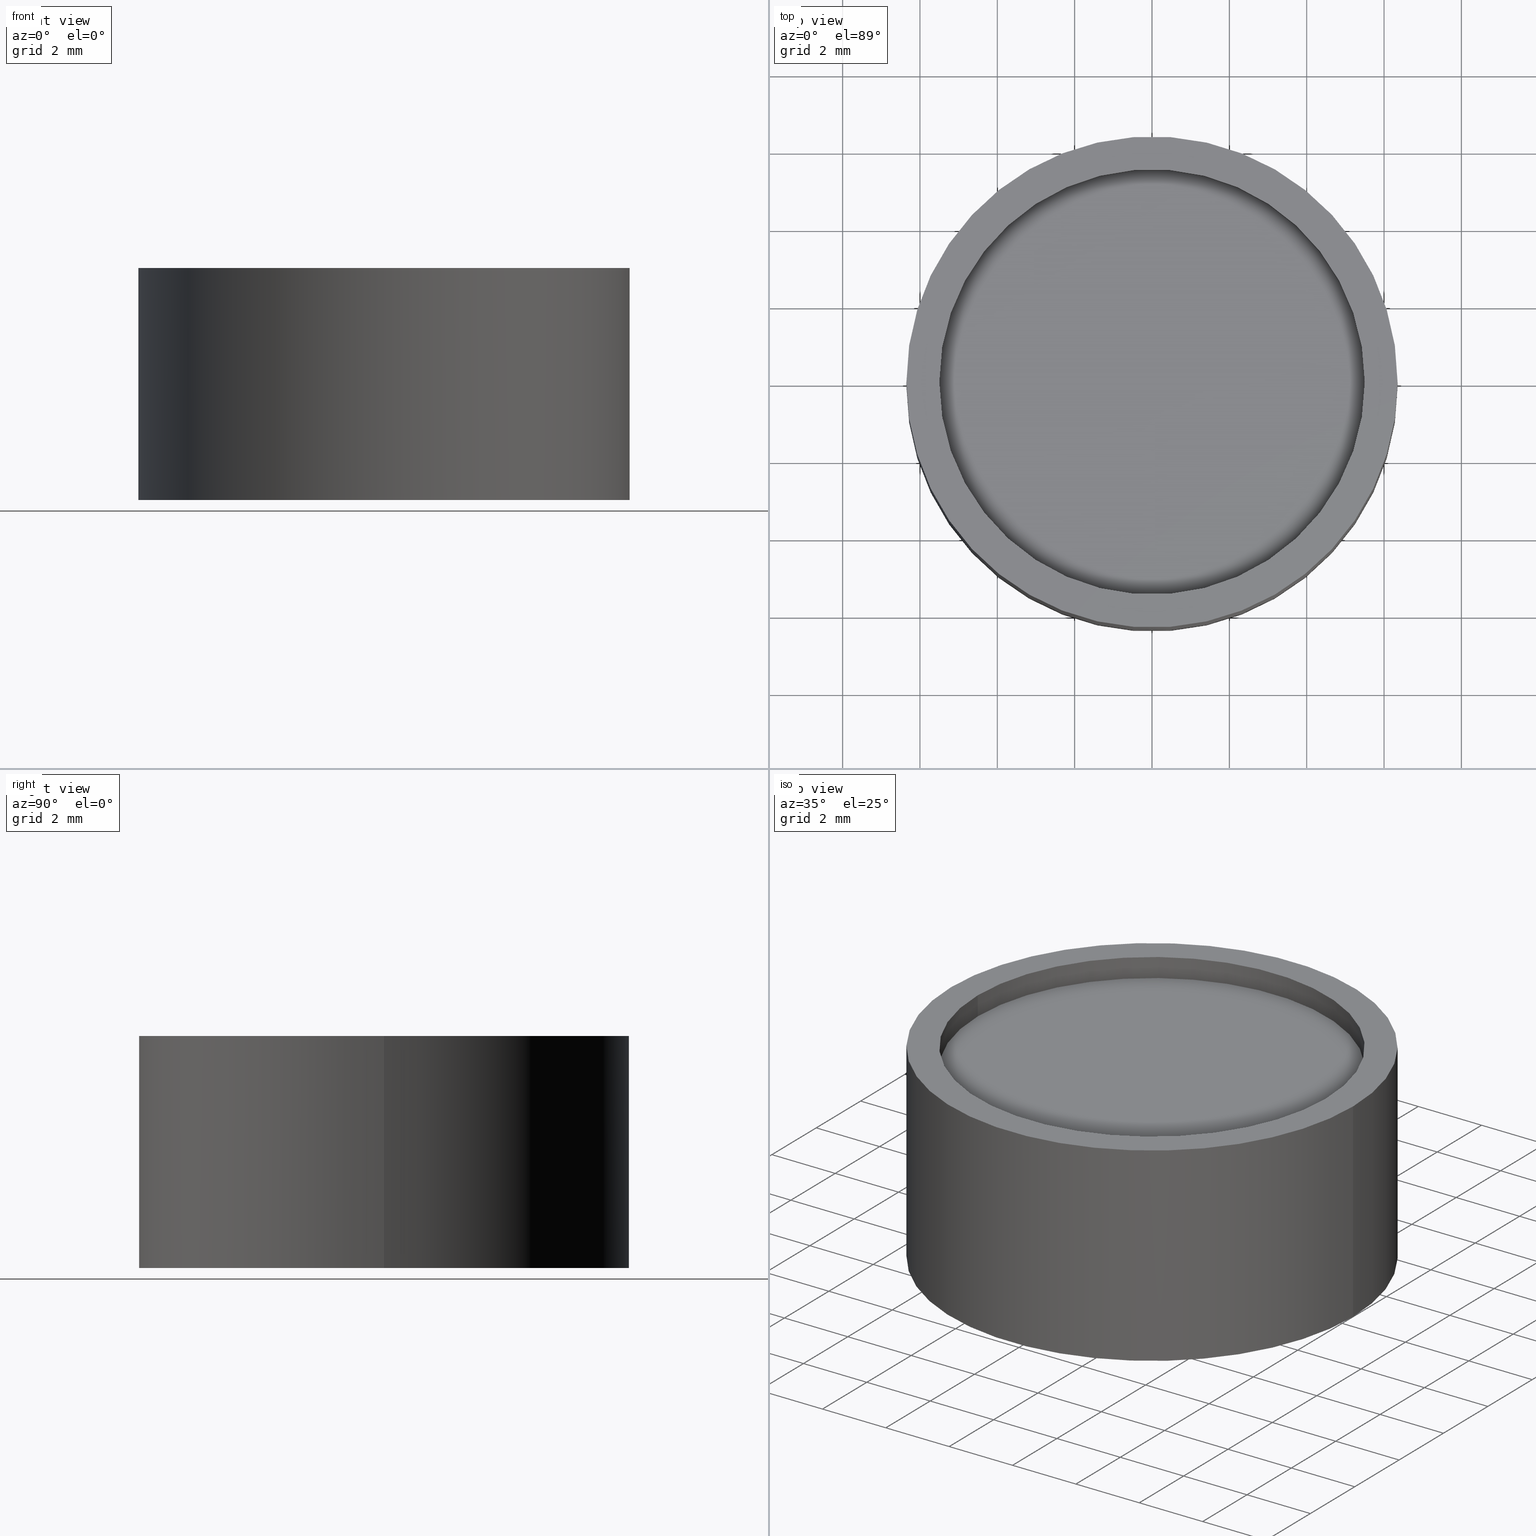
[diagram: canonical four-view strip — front | top / right | iso, engineering-drawing reading convention]
A machine part, canonical four-view strip (front | top / right | iso — engineering-drawing reading convention). The complete STEP part file that produces these views, byte-faithful:
ISO-10303-21;
HEADER;
FILE_DESCRIPTION (( 'STEP AP214' ),
    '1' );
FILE_NAME ('GNIF-030-470-D12.STEP',
    '2024-08-16T08:43:40',
    ( 'Windows User' ),
    ( 'P R C' ),
    'SwSTEP 2.0',
    'SolidWorks 2022',
    '' );
FILE_SCHEMA (( 'AUTOMOTIVE_DESIGN' ));
ENDSEC;

DATA;
#1 = ORIENTED_EDGE ( 'NONE', *, *, #38, .F. ) ;
#2 =( LENGTH_UNIT ( ) NAMED_UNIT ( * ) SI_UNIT ( .MILLI., .METRE. ) );
#3 = DIRECTION ( 'NONE',  ( -0.000000000000000000, -0.000000000000000000, 1.000000000000000000 ) ) ;
#4 = ORIENTED_EDGE ( 'NONE', *, *, #215, .T. ) ;
#5 = STYLED_ITEM ( 'NONE', ( #109 ), #318 ) ;
#6 = FILL_AREA_STYLE ('',( #202 ) ) ;
#7 = CARTESIAN_POINT ( 'NONE',  ( 5.500000000000000000, 6.735557395310442023E-16, 0.5999999999999999778 ) ) ;
#8 = CARTESIAN_POINT ( 'NONE',  ( 5.500000000000000000, 0.000000000000000000, 5.400000000000000355 ) ) ;
#9 = FACE_OUTER_BOUND ( 'NONE', #345, .T. ) ;
#10 = PRESENTATION_STYLE_ASSIGNMENT (( #132 ) ) ;
#11 = AXIS2_PLACEMENT_3D ( 'NONE', #251, #446, #330 ) ;
#12 = AXIS2_PLACEMENT_3D ( 'NONE', #462, #341, #235 ) ;
#13 = EDGE_CURVE ( 'NONE', #29, #464, #210, .T. ) ;
#14 = DIRECTION ( 'NONE',  ( -1.000000000000000000, 0.000000000000000000, 0.000000000000000000 ) ) ;
#15 = CARTESIAN_POINT ( 'NONE',  ( 0.000000000000000000, 0.000000000000000000, 6.000000000000000000 ) ) ;
#16 =( NAMED_UNIT ( * ) PLANE_ANGLE_UNIT ( ) SI_UNIT ( $, .RADIAN. ) );
#17 = CARTESIAN_POINT ( 'NONE',  ( 0.000000000000000000, 0.000000000000000000, 0.000000000000000000 ) ) ;
#18 = PRESENTATION_STYLE_ASSIGNMENT (( #211 ) ) ;
#19 =( NAMED_UNIT ( * ) SI_UNIT ( $, .STERADIAN. ) SOLID_ANGLE_UNIT ( ) );
#20 = CONICAL_SURFACE ( 'NONE', #497, 5.500000000000000000, 0.7853981633974482790 ) ;
#21 = EDGE_CURVE ( 'NONE', #464, #34, #184, .T. ) ;
#22 = FACE_OUTER_BOUND ( 'NONE', #155, .T. ) ;
#23 = CARTESIAN_POINT ( 'NONE',  ( 0.000000000000000000, 0.000000000000000000, 0.5999999999999999778 ) ) ;
#24 = DIRECTION ( 'NONE',  ( 1.000000000000000000, 0.000000000000000000, 0.000000000000000000 ) ) ;
#25 = ORIENTED_EDGE ( 'NONE', *, *, #74, .T. ) ;
#26 = PRESENTATION_LAYER_ASSIGNMENT (  '', '', ( #206 ) ) ;
#27 = CARTESIAN_POINT ( 'NONE',  ( -5.500000000000000000, 0.000000000000000000, 0.4999999999999987232 ) ) ;
#28 = CIRCLE ( 'NONE', #447, 5.500000000000000000 ) ;
#29 = VERTEX_POINT ( 'NONE', #8 ) ;
#30 = EDGE_LOOP ( 'NONE', ( #106, #158, #149, #121 ) ) ;
#31 = SURFACE_SIDE_STYLE ('',( #295 ) ) ;
#32 = ADVANCED_FACE ( 'NONE', ( #300 ), #455, .T. ) ;
#33 = STYLED_ITEM ( 'NONE', ( #10 ), #192 ) ;
#34 = VERTEX_POINT ( 'NONE', #288 ) ;
#35 = STYLED_ITEM ( 'NONE', ( #403 ), #386 ) ;
#36 = FILL_AREA_STYLE ('',( #98 ) ) ;
#37 = SURFACE_STYLE_FILL_AREA ( #429 ) ;
#38 = EDGE_CURVE ( 'NONE', #456, #493, #28, .T. ) ;
#39 = AXIS2_PLACEMENT_3D ( 'NONE', #91, #92, #243 ) ;
#40 = CARTESIAN_POINT ( 'NONE',  ( -6.349999999999999645, 0.000000000000000000, 6.000000000000000000 ) ) ;
#41 = ORIENTED_EDGE ( 'NONE', *, *, #89, .F. ) ;
#42 = PRESENTATION_STYLE_ASSIGNMENT (( #45 ) ) ;
#43 = ORIENTED_EDGE ( 'NONE', *, *, #13, .T. ) ;
#44 = APPLICATION_PROTOCOL_DEFINITION ( 'draft international standard', 'automotive_design', 1998, #116 ) ;
#45 = SURFACE_STYLE_USAGE ( .BOTH. , #382 ) ;
#46 = CARTESIAN_POINT ( 'NONE',  ( 0.000000000000000000, 0.000000000000000000, 6.000000000000000000 ) ) ;
#47 = CARTESIAN_POINT ( 'NONE',  ( 6.349999999999999645, 7.776507174585692163E-16, 6.000000000000000000 ) ) ;
#48 = CARTESIAN_POINT ( 'NONE',  ( 0.000000000000000000, 0.000000000000000000, 0.4999999999999987232 ) ) ;
#49 = EDGE_CURVE ( 'NONE', #113, #272, #52, .T. ) ;
#50 = UNCERTAINTY_MEASURE_WITH_UNIT (LENGTH_MEASURE( 1.000000000000000082E-05 ), #425, 'distance_accuracy_value', 'NONE');
#51 = DIRECTION ( 'NONE',  ( 0.000000000000000000, 0.000000000000000000, -1.000000000000000000 ) ) ;
#52 = LINE ( 'NONE', #321, #421 ) ;
#53 = VECTOR ( 'NONE', #124, 1000.000000000000000 ) ;
#54 = SURFACE_STYLE_FILL_AREA ( #397 ) ;
#55 =( LENGTH_UNIT ( ) NAMED_UNIT ( * ) SI_UNIT ( .MILLI., .METRE. ) );
#56 = SURFACE_STYLE_FILL_AREA ( #278 ) ;
#57 =( NAMED_UNIT ( * ) PLANE_ANGLE_UNIT ( ) SI_UNIT ( $, .RADIAN. ) );
#58 = CARTESIAN_POINT ( 'NONE',  ( 5.500000000000000000, 6.735557395310442023E-16, 0.5999999999999999778 ) ) ;
#59 = PRESENTATION_STYLE_ASSIGNMENT (( #219 ) ) ;
#60 = AXIS2_PLACEMENT_3D ( 'NONE', #96, #277, #205 ) ;
#61 = DIRECTION ( 'NONE',  ( 1.000000000000000000, 0.000000000000000000, 0.000000000000000000 ) ) ;
#62 = AXIS2_PLACEMENT_3D ( 'NONE', #236, #271, #160 ) ;
#63 = PRESENTATION_STYLE_ASSIGNMENT (( #411 ) ) ;
#64 = EDGE_LOOP ( 'NONE', ( #348, #370 ) ) ;
#65 = EDGE_CURVE ( 'NONE', #113, #311, #457, .T. ) ;
#66 = ORIENTED_EDGE ( 'NONE', *, *, #475, .F. ) ;
#67 = AXIS2_PLACEMENT_3D ( 'NONE', #23, #404, #103 ) ;
#68 = COLOUR_RGB ( '',0.2235294117647058654, 0.2235294117647058654, 0.2235294117647058654 ) ;
#69 = DIRECTION ( 'NONE',  ( 1.000000000000000000, 0.000000000000000000, 0.000000000000000000 ) ) ;
#70 = SURFACE_STYLE_USAGE ( .BOTH. , #373 ) ;
#71 = ORIENTED_EDGE ( 'NONE', *, *, #301, .T. ) ;
#72 = CARTESIAN_POINT ( 'NONE',  ( 5.500000000000000000, 0.000000000000000000, 6.000000000000000000 ) ) ;
#73 = ORIENTED_EDGE ( 'NONE', *, *, #166, .F. ) ;
#74 = EDGE_CURVE ( 'NONE', #458, #298, #433, .T. ) ;
#75 = DIRECTION ( 'NONE',  ( 1.000000000000000000, 0.000000000000000000, 0.000000000000000000 ) ) ;
#76 = MECHANICAL_DESIGN_GEOMETRIC_PRESENTATION_REPRESENTATION (  '', ( #358 ), #200 ) ;
#77 = CIRCLE ( 'NONE', #313, 5.500000000000000000 ) ;
#78 = AXIS2_PLACEMENT_3D ( 'NONE', #15, #161, #401 ) ;
#79 = DIRECTION ( 'NONE',  ( 1.000000000000000000, 0.000000000000000000, -0.000000000000000000 ) ) ;
#80 = ORIENTED_EDGE ( 'NONE', *, *, #283, .T. ) ;
#81 =( NAMED_UNIT ( * ) SI_UNIT ( $, .STERADIAN. ) SOLID_ANGLE_UNIT ( ) );
#82 = ORIENTED_EDGE ( 'NONE', *, *, #21, .T. ) ;
#83 = VECTOR ( 'NONE', #402, 1000.000000000000114 ) ;
#84 = SURFACE_STYLE_FILL_AREA ( #167 ) ;
#85 = DIRECTION ( 'NONE',  ( -0.000000000000000000, -0.000000000000000000, -1.000000000000000000 ) ) ;
#86 = STYLED_ITEM ( 'NONE', ( #59 ), #230 ) ;
#87 = CIRCLE ( 'NONE', #269, 5.500000000000000000 ) ;
#88 = COLOUR_RGB ( '',1.000000000000000000, 1.000000000000000000, 1.000000000000000000 ) ;
#89 = EDGE_CURVE ( 'NONE', #493, #458, #391, .T. ) ;
#90 = DIRECTION ( 'NONE',  ( 0.000000000000000000, 0.000000000000000000, 1.000000000000000000 ) ) ;
#91 = CARTESIAN_POINT ( 'NONE',  ( 0.000000000000000000, 0.000000000000000000, 6.000000000000000000 ) ) ;
#92 = DIRECTION ( 'NONE',  ( 0.000000000000000000, 0.000000000000000000, 1.000000000000000000 ) ) ;
#93 = DIRECTION ( 'NONE',  ( -1.000000000000000000, 0.000000000000000000, 0.000000000000000000 ) ) ;
#94 = CARTESIAN_POINT ( 'NONE',  ( 0.000000000000000000, 0.000000000000000000, 6.000000000000000000 ) ) ;
#95 = UNCERTAINTY_MEASURE_WITH_UNIT (LENGTH_MEASURE( 1.000000000000000082E-05 ), #327, 'distance_accuracy_value', 'NONE');
#96 = CARTESIAN_POINT ( 'NONE',  ( 0.000000000000000000, 0.000000000000000000, 0.000000000000000000 ) ) ;
#97 = DIRECTION ( 'NONE',  ( -1.000000000000000000, 0.000000000000000000, 0.000000000000000000 ) ) ;
#98 = FILL_AREA_STYLE_COLOUR ( '', #379 ) ;
#99 = SURFACE_SIDE_STYLE ('',( #254 ) ) ;
#100 = UNCERTAINTY_MEASURE_WITH_UNIT (LENGTH_MEASURE( 1.000000000000000082E-05 ), #442, 'distance_accuracy_value', 'NONE');
#101 = SURFACE_STYLE_FILL_AREA ( #377 ) ;
#102 =( NAMED_UNIT ( * ) PLANE_ANGLE_UNIT ( ) SI_UNIT ( $, .RADIAN. ) );
#103 = DIRECTION ( 'NONE',  ( -1.000000000000000000, 0.000000000000000000, 0.000000000000000000 ) ) ;
#104 = VECTOR ( 'NONE', #153, 1000.000000000000000 ) ;
#105 = CARTESIAN_POINT ( 'NONE',  ( -5.999999999999998224, 0.000000000000000000, 0.000000000000000000 ) ) ;
#106 = ORIENTED_EDGE ( 'NONE', *, *, #65, .F. ) ;
#107 =( GEOMETRIC_REPRESENTATION_CONTEXT ( 3 ) GLOBAL_UNCERTAINTY_ASSIGNED_CONTEXT ( ( #203 ) ) GLOBAL_UNIT_ASSIGNED_CONTEXT ( ( #110, #365, #437 ) ) REPRESENTATION_CONTEXT ( 'NONE', 'WORKASPACE' ) );
#108 = FILL_AREA_STYLE_COLOUR ( '', #492 ) ;
#109 = PRESENTATION_STYLE_ASSIGNMENT (( #223 ) ) ;
#110 =( LENGTH_UNIT ( ) NAMED_UNIT ( * ) SI_UNIT ( .MILLI., .METRE. ) );
#111 =( GEOMETRIC_REPRESENTATION_CONTEXT ( 3 ) GLOBAL_UNCERTAINTY_ASSIGNED_CONTEXT ( ( #128 ) ) GLOBAL_UNIT_ASSIGNED_CONTEXT ( ( #246, #165, #291 ) ) REPRESENTATION_CONTEXT ( 'NONE', 'WORKASPACE' ) );
#112 =( GEOMETRIC_REPRESENTATION_CONTEXT ( 3 ) GLOBAL_UNCERTAINTY_ASSIGNED_CONTEXT ( ( #131 ) ) GLOBAL_UNIT_ASSIGNED_CONTEXT ( ( #392, #16, #395 ) ) REPRESENTATION_CONTEXT ( 'NONE', 'WORKASPACE' ) );
#113 = VERTEX_POINT ( 'NONE', #47 ) ;
#114 = EDGE_CURVE ( 'NONE', #34, #374, #399, .T. ) ;
#115 = ORIENTED_EDGE ( 'NONE', *, *, #334, .T. ) ;
#116 = APPLICATION_CONTEXT ( 'automotive_design' ) ;
#117 = AXIS2_PLACEMENT_3D ( 'NONE', #171, #350, #239 ) ;
#118 = COLOUR_RGB ( '',0.2235294117647058654, 0.2235294117647058654, 0.2235294117647058654 ) ;
#119 = ORIENTED_EDGE ( 'NONE', *, *, #138, .T. ) ;
#120 =( NAMED_UNIT ( * ) SI_UNIT ( $, .STERADIAN. ) SOLID_ANGLE_UNIT ( ) );
#121 = ORIENTED_EDGE ( 'NONE', *, *, #342, .F. ) ;
#122 = PRODUCT_CONTEXT ( 'NONE', #116, 'mechanical' ) ;
#123 = CARTESIAN_POINT ( 'NONE',  ( 0.000000000000000000, 0.000000000000000000, 0.5999999999999999778 ) ) ;
#124 = DIRECTION ( 'NONE',  ( -0.000000000000000000, -0.000000000000000000, -1.000000000000000000 ) ) ;
#125 = AXIS2_PLACEMENT_3D ( 'NONE', #174, #445, #97 ) ;
#126 = PLANE ( 'NONE',  #218 ) ;
#127 = FACE_OUTER_BOUND ( 'NONE', #30, .T. ) ;
#128 = UNCERTAINTY_MEASURE_WITH_UNIT (LENGTH_MEASURE( 1.000000000000000082E-05 ), #246, 'distance_accuracy_value', 'NONE');
#129 = DIRECTION ( 'NONE',  ( 0.000000000000000000, 0.000000000000000000, -1.000000000000000000 ) ) ;
#130 =( LENGTH_UNIT ( ) NAMED_UNIT ( * ) SI_UNIT ( .MILLI., .METRE. ) );
#131 = UNCERTAINTY_MEASURE_WITH_UNIT (LENGTH_MEASURE( 1.000000000000000082E-05 ), #392, 'distance_accuracy_value', 'NONE');
#132 = SURFACE_STYLE_USAGE ( .BOTH. , #357 ) ;
#133 = CIRCLE ( 'NONE', #217, 6.349999999999999645 ) ;
#134 = AXIS2_PLACEMENT_3D ( 'NONE', #449, #259, #24 ) ;
#135 =( NAMED_UNIT ( * ) SI_UNIT ( $, .STERADIAN. ) SOLID_ANGLE_UNIT ( ) );
#136 = CARTESIAN_POINT ( 'NONE',  ( -5.500000000000000000, 6.735557395310442023E-16, 5.400000000000000355 ) ) ;
#137 = FACE_OUTER_BOUND ( 'NONE', #467, .T. ) ;
#138 = EDGE_CURVE ( 'NONE', #298, #222, #216, .T. ) ;
#139 = AXIS2_PLACEMENT_3D ( 'NONE', #385, #3, #273 ) ;
#140 =( NAMED_UNIT ( * ) PLANE_ANGLE_UNIT ( ) SI_UNIT ( $, .RADIAN. ) );
#141 = AXIS2_PLACEMENT_3D ( 'NONE', #168, #316, #14 ) ;
#142 = CLOSED_SHELL ( 'NONE', ( #208, #409, #386, #192, #32, #267, #318, #193, #355, #230, #194, #394 ) ) ;
#143 =( LENGTH_UNIT ( ) NAMED_UNIT ( * ) SI_UNIT ( .MILLI., .METRE. ) );
#144 = ORIENTED_EDGE ( 'NONE', *, *, #499, .T. ) ;
#145 = DIRECTION ( 'NONE',  ( 0.000000000000000000, 0.000000000000000000, -1.000000000000000000 ) ) ;
#146 = DIRECTION ( 'NONE',  ( -0.000000000000000000, -0.000000000000000000, 1.000000000000000000 ) ) ;
#147 = ORIENTED_EDGE ( 'NONE', *, *, #422, .T. ) ;
#148 = PRESENTATION_LAYER_ASSIGNMENT (  '', '', ( #423 ) ) ;
#149 = ORIENTED_EDGE ( 'NONE', *, *, #371, .T. ) ;
#150 = DIRECTION ( 'NONE',  ( 1.000000000000000000, 0.000000000000000000, 0.000000000000000000 ) ) ;
#151 = CARTESIAN_POINT ( 'NONE',  ( -5.500000000000000000, 0.000000000000000000, 0.5999999999999999778 ) ) ;
#152 = VERTEX_POINT ( 'NONE', #359 ) ;
#153 = DIRECTION ( 'NONE',  ( -0.000000000000000000, -0.000000000000000000, -1.000000000000000000 ) ) ;
#154 = PLANE ( 'NONE',  #62 ) ;
#155 = EDGE_LOOP ( 'NONE', ( #66, #82, #237, #73 ) ) ;
#156 =( LENGTH_UNIT ( ) NAMED_UNIT ( * ) SI_UNIT ( .MILLI., .METRE. ) );
#157 = MECHANICAL_DESIGN_GEOMETRIC_PRESENTATION_REPRESENTATION (  '', ( #206 ), #496 ) ;
#158 = ORIENTED_EDGE ( 'NONE', *, *, #49, .T. ) ;
#159 = CYLINDRICAL_SURFACE ( 'NONE', #139, 5.500000000000000000 ) ;
#160 = DIRECTION ( 'NONE',  ( 1.000000000000000000, 0.000000000000000000, -0.000000000000000000 ) ) ;
#161 = DIRECTION ( 'NONE',  ( -0.000000000000000000, -0.000000000000000000, -1.000000000000000000 ) ) ;
#162 =( NAMED_UNIT ( * ) PLANE_ANGLE_UNIT ( ) SI_UNIT ( $, .RADIAN. ) );
#163 = CARTESIAN_POINT ( 'NONE',  ( 0.000000000000000000, 0.000000000000000000, 6.000000000000000000 ) ) ;
#164 = LINE ( 'NONE', #7, #104 ) ;
#165 =( NAMED_UNIT ( * ) PLANE_ANGLE_UNIT ( ) SI_UNIT ( $, .RADIAN. ) );
#166 = EDGE_CURVE ( 'NONE', #29, #374, #319, .T. ) ;
#167 = FILL_AREA_STYLE ('',( #213 ) ) ;
#168 = CARTESIAN_POINT ( 'NONE',  ( 0.000000000000000000, 0.000000000000000000, 0.5999999999999999778 ) ) ;
#169 = PRESENTATION_LAYER_ASSIGNMENT (  '', '', ( #86 ) ) ;
#170 = STYLED_ITEM ( 'NONE', ( #63 ), #394 ) ;
#171 = CARTESIAN_POINT ( 'NONE',  ( 0.000000000000000000, 0.000000000000000000, 0.4999999999999987232 ) ) ;
#172 = UNCERTAINTY_MEASURE_WITH_UNIT (LENGTH_MEASURE( 1.000000000000000082E-05 ), #156, 'distance_accuracy_value', 'NONE');
#173 = DIRECTION ( 'NONE',  ( 1.000000000000000000, 0.000000000000000000, 0.000000000000000000 ) ) ;
#174 = CARTESIAN_POINT ( 'NONE',  ( 0.000000000000000000, 0.000000000000000000, 6.000000000000000000 ) ) ;
#175 = SURFACE_STYLE_USAGE ( .BOTH. , #209 ) ;
#176 = SURFACE_SIDE_STYLE ('',( #483 ) ) ;
#177 = CONICAL_SURFACE ( 'NONE', #117, 5.500000000000000000, 0.7853981633974482790 ) ;
#178 = MECHANICAL_DESIGN_GEOMETRIC_PRESENTATION_REPRESENTATION (  '', ( #5 ), #424 ) ;
#179 = MECHANICAL_DESIGN_GEOMETRIC_PRESENTATION_REPRESENTATION (  '', ( #405 ), #107 ) ;
#180 = FILL_AREA_STYLE_COLOUR ( '', #255 ) ;
#181 = CARTESIAN_POINT ( 'NONE',  ( 0.000000000000000000, 0.000000000000000000, 5.400000000000000355 ) ) ;
#182 = FILL_AREA_STYLE ('',( #325 ) ) ;
#183 = FILL_AREA_STYLE_COLOUR ( '', #68 ) ;
#184 = LINE ( 'NONE', #352, #197 ) ;
#185 = AXIS2_PLACEMENT_3D ( 'NONE', #207, #299, #228 ) ;
#186 =( NAMED_UNIT ( * ) SI_UNIT ( $, .STERADIAN. ) SOLID_ANGLE_UNIT ( ) );
#187 = ORIENTED_EDGE ( 'NONE', *, *, #65, .T. ) ;
#188 =( GEOMETRIC_REPRESENTATION_CONTEXT ( 3 ) GLOBAL_UNCERTAINTY_ASSIGNED_CONTEXT ( ( #172 ) ) GLOBAL_UNIT_ASSIGNED_CONTEXT ( ( #156, #244, #81 ) ) REPRESENTATION_CONTEXT ( 'NONE', 'WORKASPACE' ) );
#189 =( GEOMETRIC_REPRESENTATION_CONTEXT ( 3 ) GLOBAL_UNCERTAINTY_ASSIGNED_CONTEXT ( ( #324 ) ) GLOBAL_UNIT_ASSIGNED_CONTEXT ( ( #55, #57, #245 ) ) REPRESENTATION_CONTEXT ( 'NONE', 'WORKASPACE' ) );
#190 = ORIENTED_EDGE ( 'NONE', *, *, #310, .T. ) ;
#191 = APPLICATION_CONTEXT ( 'automotive_design' ) ;
#192 = ADVANCED_FACE ( 'NONE', ( #127 ), #204, .T. ) ;
#193 = ADVANCED_FACE ( 'NONE', ( #252 ), #159, .F. ) ;
#194 = ADVANCED_FACE ( 'NONE', ( #9 ), #432, .T. ) ;
#195 = ORIENTED_EDGE ( 'NONE', *, *, #220, .T. ) ;
#196 = LINE ( 'NONE', #465, #466 ) ;
#197 = VECTOR ( 'NONE', #146, 1000.000000000000000 ) ;
#198 = ORIENTED_EDGE ( 'NONE', *, *, #499, .F. ) ;
#199 = PRESENTATION_STYLE_ASSIGNMENT (( #468 ) ) ;
#200 =( GEOMETRIC_REPRESENTATION_CONTEXT ( 3 ) GLOBAL_UNCERTAINTY_ASSIGNED_CONTEXT ( ( #50 ) ) GLOBAL_UNIT_ASSIGNED_CONTEXT ( ( #425, #435, #346 ) ) REPRESENTATION_CONTEXT ( 'NONE', 'WORKASPACE' ) );
#201 = EDGE_LOOP ( 'NONE', ( #234, #380, #431, #195 ) ) ;
#202 = FILL_AREA_STYLE_COLOUR ( '', #340 ) ;
#203 = UNCERTAINTY_MEASURE_WITH_UNIT (LENGTH_MEASURE( 1.000000000000000082E-05 ), #110, 'distance_accuracy_value', 'NONE');
#204 = CYLINDRICAL_SURFACE ( 'NONE', #125, 6.349999999999999645 ) ;
#205 = DIRECTION ( 'NONE',  ( 1.000000000000000000, 0.000000000000000000, 0.000000000000000000 ) ) ;
#206 = STYLED_ITEM ( 'NONE', ( #323 ), #289 ) ;
#207 = CARTESIAN_POINT ( 'NONE',  ( 0.000000000000000000, 0.000000000000000000, 5.400000000000000355 ) ) ;
#208 = ADVANCED_FACE ( 'NONE', ( #393 ), #177, .F. ) ;
#209 = SURFACE_SIDE_STYLE ('',( #54 ) ) ;
#210 = CIRCLE ( 'NONE', #489, 5.500000000000000000 ) ;
#211 = SURFACE_STYLE_USAGE ( .BOTH. , #362 ) ;
#212 = CYLINDRICAL_SURFACE ( 'NONE', #141, 5.500000000000000000 ) ;
#213 = FILL_AREA_STYLE_COLOUR ( '', #408 ) ;
#214 = PRESENTATION_STYLE_ASSIGNMENT (( #448 ) ) ;
#215 = EDGE_CURVE ( 'NONE', #311, #113, #261, .T. ) ;
#216 = CIRCLE ( 'NONE', #60, 5.999999999999998224 ) ;
#217 = AXIS2_PLACEMENT_3D ( 'NONE', #17, #407, #61 ) ;
#218 = AXIS2_PLACEMENT_3D ( 'NONE', #436, #90, #79 ) ;
#219 = SURFACE_STYLE_USAGE ( .BOTH. , #176 ) ;
#220 = EDGE_CURVE ( 'NONE', #374, #34, #470, .T. ) ;
#221 = FACE_BOUND ( 'NONE', #64, .T. ) ;
#222 = VERTEX_POINT ( 'NONE', #328 ) ;
#223 = SURFACE_STYLE_USAGE ( .BOTH. , #332 ) ;
#224 = SURFACE_STYLE_FILL_AREA ( #260 ) ;
#225 = AXIS2_PLACEMENT_3D ( 'NONE', #242, #343, #150 ) ;
#226 = PRODUCT_DEFINITION_FORMATION_WITH_SPECIFIED_SOURCE ( '�κ�', '', #426, .NOT_KNOWN. ) ;
#227 = DIRECTION ( 'NONE',  ( 0.000000000000000000, 0.000000000000000000, -1.000000000000000000 ) ) ;
#228 = DIRECTION ( 'NONE',  ( 1.000000000000000000, 0.000000000000000000, 0.000000000000000000 ) ) ;
#229 = FACE_OUTER_BOUND ( 'NONE', #495, .T. ) ;
#230 = ADVANCED_FACE ( 'NONE', ( #137 ), #248, .F. ) ;
#231 = MECHANICAL_DESIGN_GEOMETRIC_PRESENTATION_REPRESENTATION (  '', ( #33 ), #111 ) ;
#232 = PRESENTATION_LAYER_ASSIGNMENT (  '', '', ( #170 ) ) ;
#233 = PRODUCT_DEFINITION ( 'δ֪', '', #226, #443 ) ;
#234 = ORIENTED_EDGE ( 'NONE', *, *, #21, .F. ) ;
#235 = DIRECTION ( 'NONE',  ( 1.000000000000000000, 0.000000000000000000, 0.000000000000000000 ) ) ;
#236 = CARTESIAN_POINT ( 'NONE',  ( 0.000000000000000000, 0.000000000000000000, 0.000000000000000000 ) ) ;
#237 = ORIENTED_EDGE ( 'NONE', *, *, #114, .T. ) ;
#238 =( NAMED_UNIT ( * ) SI_UNIT ( $, .STERADIAN. ) SOLID_ANGLE_UNIT ( ) );
#239 = DIRECTION ( 'NONE',  ( -1.000000000000000000, 0.000000000000000000, 0.000000000000000000 ) ) ;
#240 = PRESENTATION_LAYER_ASSIGNMENT (  '', '', ( #358 ) ) ;
#241 = DIRECTION ( 'NONE',  ( -0.000000000000000000, -0.000000000000000000, 1.000000000000000000 ) ) ;
#242 = CARTESIAN_POINT ( 'NONE',  ( 0.000000000000000000, 0.000000000000000000, 0.000000000000000000 ) ) ;
#243 = DIRECTION ( 'NONE',  ( 1.000000000000000000, 0.000000000000000000, 0.000000000000000000 ) ) ;
#244 =( NAMED_UNIT ( * ) PLANE_ANGLE_UNIT ( ) SI_UNIT ( $, .RADIAN. ) );
#245 =( NAMED_UNIT ( * ) SI_UNIT ( $, .STERADIAN. ) SOLID_ANGLE_UNIT ( ) );
#246 =( LENGTH_UNIT ( ) NAMED_UNIT ( * ) SI_UNIT ( .MILLI., .METRE. ) );
#247 = FACE_OUTER_BOUND ( 'NONE', #266, .T. ) ;
#248 = CYLINDRICAL_SURFACE ( 'NONE', #67, 5.500000000000000000 ) ;
#249 = COLOUR_RGB ( '',0.2235294117647058654, 0.2235294117647058654, 0.2235294117647058654 ) ;
#250 = CARTESIAN_POINT ( 'NONE',  ( -5.500000000000000000, 0.000000000000000000, 0.4999999999999987232 ) ) ;
#251 = CARTESIAN_POINT ( 'NONE',  ( 0.000000000000000000, 0.000000000000000000, 6.000000000000000000 ) ) ;
#252 = FACE_OUTER_BOUND ( 'NONE', #201, .T. ) ;
#253 = SURFACE_STYLE_USAGE ( .BOTH. , #31 ) ;
#254 = SURFACE_STYLE_FILL_AREA ( #182 ) ;
#255 = COLOUR_RGB ( '',0.2235294117647058654, 0.2235294117647058654, 0.2235294117647058654 ) ;
#256 = CIRCLE ( 'NONE', #331, 5.500000000000000000 ) ;
#257 = PLANE ( 'NONE',  #372 ) ;
#258 = ORIENTED_EDGE ( 'NONE', *, *, #301, .F. ) ;
#259 = DIRECTION ( 'NONE',  ( 0.000000000000000000, 0.000000000000000000, 1.000000000000000000 ) ) ;
#260 = FILL_AREA_STYLE ('',( #108 ) ) ;
#261 = CIRCLE ( 'NONE', #305, 6.349999999999999645 ) ;
#262 = ORIENTED_EDGE ( 'NONE', *, *, #310, .F. ) ;
#263 = AXIS2_PLACEMENT_3D ( 'NONE', #181, #366, #75 ) ;
#264 = ORIENTED_EDGE ( 'NONE', *, *, #49, .F. ) ;
#265 = CARTESIAN_POINT ( 'NONE',  ( 0.000000000000000000, 0.000000000000000000, 0.5999999999999999778 ) ) ;
#266 = EDGE_LOOP ( 'NONE', ( #1, #115, #147, #41 ) ) ;
#267 = ADVANCED_FACE ( 'NONE', ( #221, #296 ), #257, .T. ) ;
#268 =( NAMED_UNIT ( * ) PLANE_ANGLE_UNIT ( ) SI_UNIT ( $, .RADIAN. ) );
#269 = AXIS2_PLACEMENT_3D ( 'NONE', #265, #227, #480 ) ;
#270 = STYLED_ITEM ( 'NONE', ( #199 ), #360 ) ;
#271 = DIRECTION ( 'NONE',  ( 0.000000000000000000, 0.000000000000000000, 1.000000000000000000 ) ) ;
#272 = VERTEX_POINT ( 'NONE', #286 ) ;
#273 = DIRECTION ( 'NONE',  ( 1.000000000000000000, 0.000000000000000000, 0.000000000000000000 ) ) ;
#274 = ORIENTED_EDGE ( 'NONE', *, *, #383, .F. ) ;
#275 = SURFACE_SIDE_STYLE ('',( #37 ) ) ;
#276 = SURFACE_STYLE_USAGE ( .BOTH. , #356 ) ;
#277 = DIRECTION ( 'NONE',  ( 0.000000000000000000, 0.000000000000000000, 1.000000000000000000 ) ) ;
#278 = FILL_AREA_STYLE ('',( #322 ) ) ;
#279 = MECHANICAL_DESIGN_GEOMETRIC_PRESENTATION_REPRESENTATION (  '', ( #326 ), #290 ) ;
#280 = MECHANICAL_DESIGN_GEOMETRIC_PRESENTATION_REPRESENTATION (  '', ( #170 ), #112 ) ;
#281 = PRESENTATION_LAYER_ASSIGNMENT (  '', '', ( #389 ) ) ;
#282 = CARTESIAN_POINT ( 'NONE',  ( -5.500000000000000000, 0.000000000000000000, 0.5999999999999999778 ) ) ;
#283 = EDGE_CURVE ( 'NONE', #314, #272, #133, .T. ) ;
#284 = FILL_AREA_STYLE ('',( #474 ) ) ;
#285 = DIRECTION ( 'NONE',  ( 0.000000000000000000, 0.000000000000000000, -1.000000000000000000 ) ) ;
#286 = CARTESIAN_POINT ( 'NONE',  ( 6.349999999999999645, 7.776507174585692163E-16, 0.000000000000000000 ) ) ;
#287 = UNCERTAINTY_MEASURE_WITH_UNIT (LENGTH_MEASURE( 1.000000000000000082E-05 ), #453, 'distance_accuracy_value', 'NONE');
#288 = CARTESIAN_POINT ( 'NONE',  ( -5.500000000000000000, 6.735557395310442023E-16, 6.000000000000000000 ) ) ;
#289 = MANIFOLD_SOLID_BREP ( '����1', #142 ) ;
#290 =( GEOMETRIC_REPRESENTATION_CONTEXT ( 3 ) GLOBAL_UNCERTAINTY_ASSIGNED_CONTEXT ( ( #100 ) ) GLOBAL_UNIT_ASSIGNED_CONTEXT ( ( #442, #102, #19 ) ) REPRESENTATION_CONTEXT ( 'NONE', 'WORKASPACE' ) );
#291 =( NAMED_UNIT ( * ) SI_UNIT ( $, .STERADIAN. ) SOLID_ANGLE_UNIT ( ) );
#292 = MECHANICAL_DESIGN_GEOMETRIC_PRESENTATION_REPRESENTATION (  '', ( #35 ), #479 ) ;
#293 = DIRECTION ( 'NONE',  ( 1.000000000000000000, 0.000000000000000000, 0.000000000000000000 ) ) ;
#294 = UNCERTAINTY_MEASURE_WITH_UNIT (LENGTH_MEASURE( 1.000000000000000082E-05 ), #143, 'distance_accuracy_value', 'NONE');
#295 = SURFACE_STYLE_FILL_AREA ( #36 ) ;
#296 = FACE_OUTER_BOUND ( 'NONE', #418, .T. ) ;
#297 = COLOUR_RGB ( '',0.2235294117647058654, 0.2235294117647058654, 0.2235294117647058654 ) ;
#298 = VERTEX_POINT ( 'NONE', #105 ) ;
#299 = DIRECTION ( 'NONE',  ( 0.000000000000000000, 0.000000000000000000, 1.000000000000000000 ) ) ;
#300 = FACE_OUTER_BOUND ( 'NONE', #376, .T. ) ;
#301 = EDGE_CURVE ( 'NONE', #222, #298, #351, .T. ) ;
#302 = SURFACE_STYLE_FILL_AREA ( #335 ) ;
#303 = PRESENTATION_STYLE_ASSIGNMENT (( #70 ) ) ;
#304 = ORIENTED_EDGE ( 'NONE', *, *, #475, .T. ) ;
#305 = AXIS2_PLACEMENT_3D ( 'NONE', #163, #320, #293 ) ;
#306 = MECHANICAL_DESIGN_GEOMETRIC_PRESENTATION_REPRESENTATION (  '', ( #389 ), #189 ) ;
#307 =( GEOMETRIC_REPRESENTATION_CONTEXT ( 3 ) GLOBAL_UNCERTAINTY_ASSIGNED_CONTEXT ( ( #398 ) ) GLOBAL_UNIT_ASSIGNED_CONTEXT ( ( #2, #162, #120 ) ) REPRESENTATION_CONTEXT ( 'NONE', 'WORKASPACE' ) );
#308 = ORIENTED_EDGE ( 'NONE', *, *, #371, .F. ) ;
#309 = SHAPE_DEFINITION_REPRESENTATION ( #368, #360 ) ;
#310 = EDGE_CURVE ( 'NONE', #458, #152, #77, .T. ) ;
#311 = VERTEX_POINT ( 'NONE', #487 ) ;
#312 =( GEOMETRIC_REPRESENTATION_CONTEXT ( 3 ) GLOBAL_UNCERTAINTY_ASSIGNED_CONTEXT ( ( #364 ) ) GLOBAL_UNIT_ASSIGNED_CONTEXT ( ( #130, #410, #135 ) ) REPRESENTATION_CONTEXT ( 'NONE', 'WORKASPACE' ) );
#313 = AXIS2_PLACEMENT_3D ( 'NONE', #414, #145, #69 ) ;
#314 = VERTEX_POINT ( 'NONE', #412 ) ;
#315 = FACE_OUTER_BOUND ( 'NONE', #428, .T. ) ;
#316 = DIRECTION ( 'NONE',  ( -0.000000000000000000, -0.000000000000000000, -1.000000000000000000 ) ) ;
#317 = VECTOR ( 'NONE', #469, 1000.000000000000000 ) ;
#318 = ADVANCED_FACE ( 'NONE', ( #369, #484 ), #154, .F. ) ;
#319 = LINE ( 'NONE', #476, #494 ) ;
#320 = DIRECTION ( 'NONE',  ( 0.000000000000000000, 0.000000000000000000, 1.000000000000000000 ) ) ;
#321 = CARTESIAN_POINT ( 'NONE',  ( 6.349999999999999645, 7.776507174585692163E-16, 6.000000000000000000 ) ) ;
#322 = FILL_AREA_STYLE_COLOUR ( '', #297 ) ;
#323 = PRESENTATION_STYLE_ASSIGNMENT (( #175 ) ) ;
#324 = UNCERTAINTY_MEASURE_WITH_UNIT (LENGTH_MEASURE( 1.000000000000000082E-05 ), #55, 'distance_accuracy_value', 'NONE');
#325 = FILL_AREA_STYLE_COLOUR ( '', #459 ) ;
#326 = STYLED_ITEM ( 'NONE', ( #214 ), #267 ) ;
#327 =( LENGTH_UNIT ( ) NAMED_UNIT ( * ) SI_UNIT ( .MILLI., .METRE. ) );
#328 = CARTESIAN_POINT ( 'NONE',  ( 5.999999999999998224, 7.347880794884117764E-16, 0.000000000000000000 ) ) ;
#329 = FILL_AREA_STYLE_COLOUR ( '', #118 ) ;
#330 = DIRECTION ( 'NONE',  ( 1.000000000000000000, 0.000000000000000000, 0.000000000000000000 ) ) ;
#331 = AXIS2_PLACEMENT_3D ( 'NONE', #396, #51, #173 ) ;
#332 = SURFACE_SIDE_STYLE ('',( #302 ) ) ;
#333 = EDGE_LOOP ( 'NONE', ( #500, #144, #488, #336 ) ) ;
#334 = EDGE_CURVE ( 'NONE', #456, #152, #164, .T. ) ;
#335 = FILL_AREA_STYLE ('',( #183 ) ) ;
#336 = ORIENTED_EDGE ( 'NONE', *, *, #74, .F. ) ;
#337 = ORIENTED_EDGE ( 'NONE', *, *, #383, .T. ) ;
#338 = ORIENTED_EDGE ( 'NONE', *, *, #215, .F. ) ;
#339 =( NAMED_UNIT ( * ) SI_UNIT ( $, .STERADIAN. ) SOLID_ANGLE_UNIT ( ) );
#340 = COLOUR_RGB ( '',0.2235294117647058654, 0.2235294117647058654, 0.2235294117647058654 ) ;
#341 = DIRECTION ( 'NONE',  ( 0.000000000000000000, 0.000000000000000000, 1.000000000000000000 ) ) ;
#342 = EDGE_CURVE ( 'NONE', #311, #314, #427, .T. ) ;
#343 = DIRECTION ( 'NONE',  ( 0.000000000000000000, 0.000000000000000000, 1.000000000000000000 ) ) ;
#344 = APPLICATION_PROTOCOL_DEFINITION ( 'draft international standard', 'automotive_design', 1998, #191 ) ;
#345 = EDGE_LOOP ( 'NONE', ( #337, #461 ) ) ;
#346 =( NAMED_UNIT ( * ) SI_UNIT ( $, .STERADIAN. ) SOLID_ANGLE_UNIT ( ) );
#347 =( NAMED_UNIT ( * ) SI_UNIT ( $, .STERADIAN. ) SOLID_ANGLE_UNIT ( ) );
#348 = ORIENTED_EDGE ( 'NONE', *, *, #220, .F. ) ;
#349 = MECHANICAL_DESIGN_GEOMETRIC_PRESENTATION_REPRESENTATION (  '', ( #423 ), #188 ) ;
#350 = DIRECTION ( 'NONE',  ( 0.000000000000000000, 0.000000000000000000, -1.000000000000000000 ) ) ;
#351 = CIRCLE ( 'NONE', #134, 5.999999999999998224 ) ;
#352 = CARTESIAN_POINT ( 'NONE',  ( -5.500000000000000000, 6.735557395310442023E-16, 5.400000000000000355 ) ) ;
#353 = SURFACE_STYLE_FILL_AREA ( #6 ) ;
#354 = DIRECTION ( 'NONE',  ( 0.000000000000000000, 0.000000000000000000, 1.000000000000000000 ) ) ;
#355 = ADVANCED_FACE ( 'NONE', ( #315 ), #126, .T. ) ;
#356 = SURFACE_SIDE_STYLE ('',( #353 ) ) ;
#357 = SURFACE_SIDE_STYLE ('',( #361 ) ) ;
#358 = STYLED_ITEM ( 'NONE', ( #42 ), #193 ) ;
#359 = CARTESIAN_POINT ( 'NONE',  ( 5.500000000000000000, 6.735557395310442023E-16, 0.4999999999999987232 ) ) ;
#360 = ADVANCED_BREP_SHAPE_REPRESENTATION ( 'GNIF-030-470-D12', ( #289, #12 ), #452 ) ;
#361 = SURFACE_STYLE_FILL_AREA ( #284 ) ;
#362 = SURFACE_SIDE_STYLE ('',( #56 ) ) ;
#363 = DIRECTION ( 'NONE',  ( 0.000000000000000000, 0.000000000000000000, 1.000000000000000000 ) ) ;
#364 = UNCERTAINTY_MEASURE_WITH_UNIT (LENGTH_MEASURE( 1.000000000000000082E-05 ), #130, 'distance_accuracy_value', 'NONE');
#365 =( NAMED_UNIT ( * ) PLANE_ANGLE_UNIT ( ) SI_UNIT ( $, .RADIAN. ) );
#366 = DIRECTION ( 'NONE',  ( -0.000000000000000000, -0.000000000000000000, 1.000000000000000000 ) ) ;
#367 = AXIS2_PLACEMENT_3D ( 'NONE', #46, #354, #441 ) ;
#368 = PRODUCT_DEFINITION_SHAPE ( 'NONE', 'NONE',  #233 ) ;
#369 = FACE_BOUND ( 'NONE', #419, .T. ) ;
#370 = ORIENTED_EDGE ( 'NONE', *, *, #114, .F. ) ;
#371 = EDGE_CURVE ( 'NONE', #272, #314, #451, .T. ) ;
#372 = AXIS2_PLACEMENT_3D ( 'NONE', #94, #363, #478 ) ;
#373 = SURFACE_SIDE_STYLE ('',( #224 ) ) ;
#374 = VERTEX_POINT ( 'NONE', #72 ) ;
#375 = EDGE_LOOP ( 'NONE', ( #463, #308 ) ) ;
#376 = EDGE_LOOP ( 'NONE', ( #264, #338, #384, #80 ) ) ;
#377 = FILL_AREA_STYLE ('',( #329 ) ) ;
#378 = DIRECTION ( 'NONE',  ( 0.7071067811865474617, 8.659560562354932858E-17, -0.7071067811865474617 ) ) ;
#379 = COLOUR_RGB ( '',0.2235294117647058654, 0.2235294117647058654, 0.2235294117647058654 ) ;
#380 = ORIENTED_EDGE ( 'NONE', *, *, #13, .F. ) ;
#381 =( LENGTH_UNIT ( ) NAMED_UNIT ( * ) SI_UNIT ( .MILLI., .METRE. ) );
#382 = SURFACE_SIDE_STYLE ('',( #84 ) ) ;
#383 = EDGE_CURVE ( 'NONE', #493, #456, #87, .T. ) ;
#384 = ORIENTED_EDGE ( 'NONE', *, *, #342, .T. ) ;
#385 = CARTESIAN_POINT ( 'NONE',  ( 0.000000000000000000, 0.000000000000000000, 5.400000000000000355 ) ) ;
#386 = ADVANCED_FACE ( 'NONE', ( #22 ), #420, .F. ) ;
#387 = DIRECTION ( 'NONE',  ( 1.000000000000000000, 0.000000000000000000, 0.000000000000000000 ) ) ;
#388 = AXIS2_PLACEMENT_3D ( 'NONE', #123, #471, #430 ) ;
#389 = STYLED_ITEM ( 'NONE', ( #18 ), #409 ) ;
#390 = PRESENTATION_LAYER_ASSIGNMENT (  '', '', ( #405 ) ) ;
#391 = LINE ( 'NONE', #282, #53 ) ;
#392 =( LENGTH_UNIT ( ) NAMED_UNIT ( * ) SI_UNIT ( .MILLI., .METRE. ) );
#393 = FACE_OUTER_BOUND ( 'NONE', #333, .T. ) ;
#394 = ADVANCED_FACE ( 'NONE', ( #229 ), #20, .F. ) ;
#395 =( NAMED_UNIT ( * ) SI_UNIT ( $, .STERADIAN. ) SOLID_ANGLE_UNIT ( ) );
#396 = CARTESIAN_POINT ( 'NONE',  ( 0.000000000000000000, 0.000000000000000000, 0.4999999999999987232 ) ) ;
#397 = FILL_AREA_STYLE ('',( #440 ) ) ;
#398 = UNCERTAINTY_MEASURE_WITH_UNIT (LENGTH_MEASURE( 1.000000000000000082E-05 ), #2, 'distance_accuracy_value', 'NONE');
#399 = CIRCLE ( 'NONE', #367, 5.500000000000000000 ) ;
#400 = CIRCLE ( 'NONE', #185, 5.500000000000000000 ) ;
#401 = DIRECTION ( 'NONE',  ( -1.000000000000000000, 0.000000000000000000, 0.000000000000000000 ) ) ;
#402 = DIRECTION ( 'NONE',  ( -0.7071067811865474617, 0.000000000000000000, -0.7071067811865474617 ) ) ;
#403 = PRESENTATION_STYLE_ASSIGNMENT (( #253 ) ) ;
#404 = DIRECTION ( 'NONE',  ( -0.000000000000000000, -0.000000000000000000, -1.000000000000000000 ) ) ;
#405 = STYLED_ITEM ( 'NONE', ( #303 ), #32 ) ;
#406 = SURFACE_SIDE_STYLE ('',( #101 ) ) ;
#407 = DIRECTION ( 'NONE',  ( 0.000000000000000000, 0.000000000000000000, 1.000000000000000000 ) ) ;
#408 = COLOUR_RGB ( '',0.2235294117647058654, 0.2235294117647058654, 0.2235294117647058654 ) ;
#409 = ADVANCED_FACE ( 'NONE', ( #247 ), #212, .F. ) ;
#410 =( NAMED_UNIT ( * ) PLANE_ANGLE_UNIT ( ) SI_UNIT ( $, .RADIAN. ) );
#411 = SURFACE_STYLE_USAGE ( .BOTH. , #406 ) ;
#412 = CARTESIAN_POINT ( 'NONE',  ( -6.349999999999999645, 0.000000000000000000, 0.000000000000000000 ) ) ;
#413 = ORIENTED_EDGE ( 'NONE', *, *, #334, .F. ) ;
#414 = CARTESIAN_POINT ( 'NONE',  ( 0.000000000000000000, 0.000000000000000000, 0.4999999999999987232 ) ) ;
#415 = ORIENTED_EDGE ( 'NONE', *, *, #89, .T. ) ;
#416 = COLOUR_RGB ( '',1.000000000000000000, 1.000000000000000000, 1.000000000000000000 ) ;
#417 = PRESENTATION_LAYER_ASSIGNMENT (  '', '', ( #5 ) ) ;
#418 = EDGE_LOOP ( 'NONE', ( #4, #187 ) ) ;
#419 = EDGE_LOOP ( 'NONE', ( #119, #71 ) ) ;
#420 = CYLINDRICAL_SURFACE ( 'NONE', #263, 5.500000000000000000 ) ;
#421 = VECTOR ( 'NONE', #85, 1000.000000000000000 ) ;
#422 = EDGE_CURVE ( 'NONE', #152, #458, #256, .T. ) ;
#423 = STYLED_ITEM ( 'NONE', ( #438 ), #208 ) ;
#424 =( GEOMETRIC_REPRESENTATION_CONTEXT ( 3 ) GLOBAL_UNCERTAINTY_ASSIGNED_CONTEXT ( ( #294 ) ) GLOBAL_UNIT_ASSIGNED_CONTEXT ( ( #143, #490, #347 ) ) REPRESENTATION_CONTEXT ( 'NONE', 'WORKASPACE' ) );
#425 =( LENGTH_UNIT ( ) NAMED_UNIT ( * ) SI_UNIT ( .MILLI., .METRE. ) );
#426 = PRODUCT ( 'GNIF-030-470-D12', 'GNIF-030-470-D12', '', ( #122 ) ) ;
#427 = LINE ( 'NONE', #40, #317 ) ;
#428 = EDGE_LOOP ( 'NONE', ( #43, #304 ) ) ;
#429 = FILL_AREA_STYLE ('',( #498 ) ) ;
#430 = DIRECTION ( 'NONE',  ( -1.000000000000000000, 0.000000000000000000, -0.000000000000000000 ) ) ;
#431 = ORIENTED_EDGE ( 'NONE', *, *, #166, .T. ) ;
#432 = PLANE ( 'NONE',  #388 ) ;
#433 = LINE ( 'NONE', #250, #83 ) ;
#434 = PRESENTATION_LAYER_ASSIGNMENT (  '', '', ( #33 ) ) ;
#435 =( NAMED_UNIT ( * ) PLANE_ANGLE_UNIT ( ) SI_UNIT ( $, .RADIAN. ) );
#436 = CARTESIAN_POINT ( 'NONE',  ( 0.000000000000000000, 0.000000000000000000, 5.400000000000000355 ) ) ;
#437 =( NAMED_UNIT ( * ) SI_UNIT ( $, .STERADIAN. ) SOLID_ANGLE_UNIT ( ) );
#438 = PRESENTATION_STYLE_ASSIGNMENT (( #276 ) ) ;
#439 = DIRECTION ( 'NONE',  ( -1.000000000000000000, 0.000000000000000000, 0.000000000000000000 ) ) ;
#440 = FILL_AREA_STYLE_COLOUR ( '', #416 ) ;
#441 = DIRECTION ( 'NONE',  ( 1.000000000000000000, 0.000000000000000000, 0.000000000000000000 ) ) ;
#442 =( LENGTH_UNIT ( ) NAMED_UNIT ( * ) SI_UNIT ( .MILLI., .METRE. ) );
#443 = PRODUCT_DEFINITION_CONTEXT ( 'detailed design', #191, 'design' ) ;
#444 = PRESENTATION_LAYER_ASSIGNMENT (  '', '', ( #270 ) ) ;
#445 = DIRECTION ( 'NONE',  ( -0.000000000000000000, -0.000000000000000000, -1.000000000000000000 ) ) ;
#446 = DIRECTION ( 'NONE',  ( 0.000000000000000000, 0.000000000000000000, 1.000000000000000000 ) ) ;
#447 = AXIS2_PLACEMENT_3D ( 'NONE', #472, #129, #439 ) ;
#448 = SURFACE_STYLE_USAGE ( .BOTH. , #99 ) ;
#449 = CARTESIAN_POINT ( 'NONE',  ( 0.000000000000000000, 0.000000000000000000, 0.000000000000000000 ) ) ;
#450 = MECHANICAL_DESIGN_GEOMETRIC_PRESENTATION_REPRESENTATION (  '', ( #86 ), #312 ) ;
#451 = CIRCLE ( 'NONE', #225, 6.349999999999999645 ) ;
#452 =( GEOMETRIC_REPRESENTATION_CONTEXT ( 3 ) GLOBAL_UNCERTAINTY_ASSIGNED_CONTEXT ( ( #473 ) ) GLOBAL_UNIT_ASSIGNED_CONTEXT ( ( #381, #268, #238 ) ) REPRESENTATION_CONTEXT ( 'NONE', 'WORKASPACE' ) );
#453 =( LENGTH_UNIT ( ) NAMED_UNIT ( * ) SI_UNIT ( .MILLI., .METRE. ) );
#454 = DIRECTION ( 'NONE',  ( 0.000000000000000000, 0.000000000000000000, 1.000000000000000000 ) ) ;
#455 = CYLINDRICAL_SURFACE ( 'NONE', #78, 6.349999999999999645 ) ;
#456 = VERTEX_POINT ( 'NONE', #58 ) ;
#457 = CIRCLE ( 'NONE', #39, 6.349999999999999645 ) ;
#458 = VERTEX_POINT ( 'NONE', #27 ) ;
#459 = COLOUR_RGB ( '',0.2235294117647058654, 0.2235294117647058654, 0.2235294117647058654 ) ;
#460 = MECHANICAL_DESIGN_GEOMETRIC_PRESENTATION_REPRESENTATION (  '', ( #270 ), #307 ) ;
#461 = ORIENTED_EDGE ( 'NONE', *, *, #38, .T. ) ;
#462 = CARTESIAN_POINT ( 'NONE',  ( 0.000000000000000000, 0.000000000000000000, 0.000000000000000000 ) ) ;
#463 = ORIENTED_EDGE ( 'NONE', *, *, #283, .F. ) ;
#464 = VERTEX_POINT ( 'NONE', #136 ) ;
#465 = CARTESIAN_POINT ( 'NONE',  ( 5.500000000000000000, 6.735557395310442023E-16, 0.4999999999999987232 ) ) ;
#466 = VECTOR ( 'NONE', #378, 1000.000000000000114 ) ;
#467 = EDGE_LOOP ( 'NONE', ( #413, #274, #415, #190 ) ) ;
#468 = SURFACE_STYLE_USAGE ( .BOTH. , #275 ) ;
#469 = DIRECTION ( 'NONE',  ( -0.000000000000000000, -0.000000000000000000, -1.000000000000000000 ) ) ;
#470 = CIRCLE ( 'NONE', #11, 5.500000000000000000 ) ;
#471 = DIRECTION ( 'NONE',  ( 0.000000000000000000, 0.000000000000000000, -1.000000000000000000 ) ) ;
#472 = CARTESIAN_POINT ( 'NONE',  ( 0.000000000000000000, 0.000000000000000000, 0.5999999999999999778 ) ) ;
#473 = UNCERTAINTY_MEASURE_WITH_UNIT (LENGTH_MEASURE( 1.000000000000000082E-05 ), #381, 'distance_accuracy_value', 'NONE');
#474 = FILL_AREA_STYLE_COLOUR ( '', #249 ) ;
#475 = EDGE_CURVE ( 'NONE', #464, #29, #400, .T. ) ;
#476 = CARTESIAN_POINT ( 'NONE',  ( 5.500000000000000000, 0.000000000000000000, 5.400000000000000355 ) ) ;
#477 = PRODUCT_RELATED_PRODUCT_CATEGORY ( 'part', '', ( #426 ) ) ;
#478 = DIRECTION ( 'NONE',  ( 1.000000000000000000, 0.000000000000000000, -0.000000000000000000 ) ) ;
#479 =( GEOMETRIC_REPRESENTATION_CONTEXT ( 3 ) GLOBAL_UNCERTAINTY_ASSIGNED_CONTEXT ( ( #95 ) ) GLOBAL_UNIT_ASSIGNED_CONTEXT ( ( #327, #482, #339 ) ) REPRESENTATION_CONTEXT ( 'NONE', 'WORKASPACE' ) );
#480 = DIRECTION ( 'NONE',  ( -1.000000000000000000, 0.000000000000000000, 0.000000000000000000 ) ) ;
#481 = FILL_AREA_STYLE ('',( #180 ) ) ;
#482 =( NAMED_UNIT ( * ) PLANE_ANGLE_UNIT ( ) SI_UNIT ( $, .RADIAN. ) );
#483 = SURFACE_STYLE_FILL_AREA ( #481 ) ;
#484 = FACE_OUTER_BOUND ( 'NONE', #375, .T. ) ;
#485 = PRESENTATION_LAYER_ASSIGNMENT (  '', '', ( #326 ) ) ;
#486 = PRESENTATION_LAYER_ASSIGNMENT (  '', '', ( #35 ) ) ;
#487 = CARTESIAN_POINT ( 'NONE',  ( -6.349999999999999645, 0.000000000000000000, 6.000000000000000000 ) ) ;
#488 = ORIENTED_EDGE ( 'NONE', *, *, #138, .F. ) ;
#489 = AXIS2_PLACEMENT_3D ( 'NONE', #491, #454, #387 ) ;
#490 =( NAMED_UNIT ( * ) PLANE_ANGLE_UNIT ( ) SI_UNIT ( $, .RADIAN. ) );
#491 = CARTESIAN_POINT ( 'NONE',  ( 0.000000000000000000, 0.000000000000000000, 5.400000000000000355 ) ) ;
#492 = COLOUR_RGB ( '',0.2235294117647058654, 0.2235294117647058654, 0.2235294117647058654 ) ;
#493 = VERTEX_POINT ( 'NONE', #151 ) ;
#494 = VECTOR ( 'NONE', #241, 1000.000000000000000 ) ;
#495 = EDGE_LOOP ( 'NONE', ( #198, #262, #25, #258 ) ) ;
#496 =( GEOMETRIC_REPRESENTATION_CONTEXT ( 3 ) GLOBAL_UNCERTAINTY_ASSIGNED_CONTEXT ( ( #287 ) ) GLOBAL_UNIT_ASSIGNED_CONTEXT ( ( #453, #140, #186 ) ) REPRESENTATION_CONTEXT ( 'NONE', 'WORKASPACE' ) );
#497 = AXIS2_PLACEMENT_3D ( 'NONE', #48, #285, #93 ) ;
#498 = FILL_AREA_STYLE_COLOUR ( '', #88 ) ;
#499 = EDGE_CURVE ( 'NONE', #152, #222, #196, .T. ) ;
#500 = ORIENTED_EDGE ( 'NONE', *, *, #422, .F. ) ;
ENDSEC;
END-ISO-10303-21;
